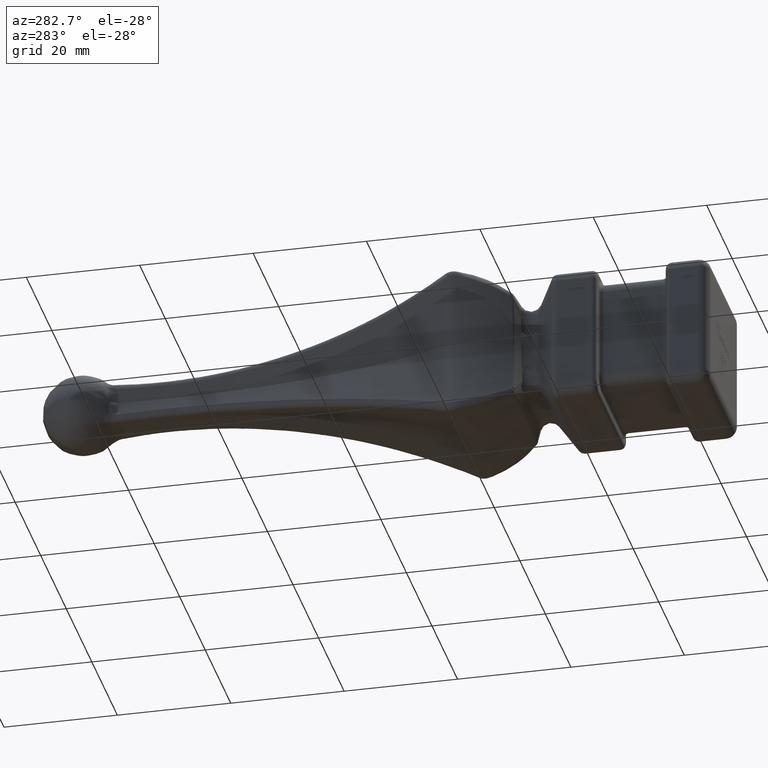
[diagram: clean part render]
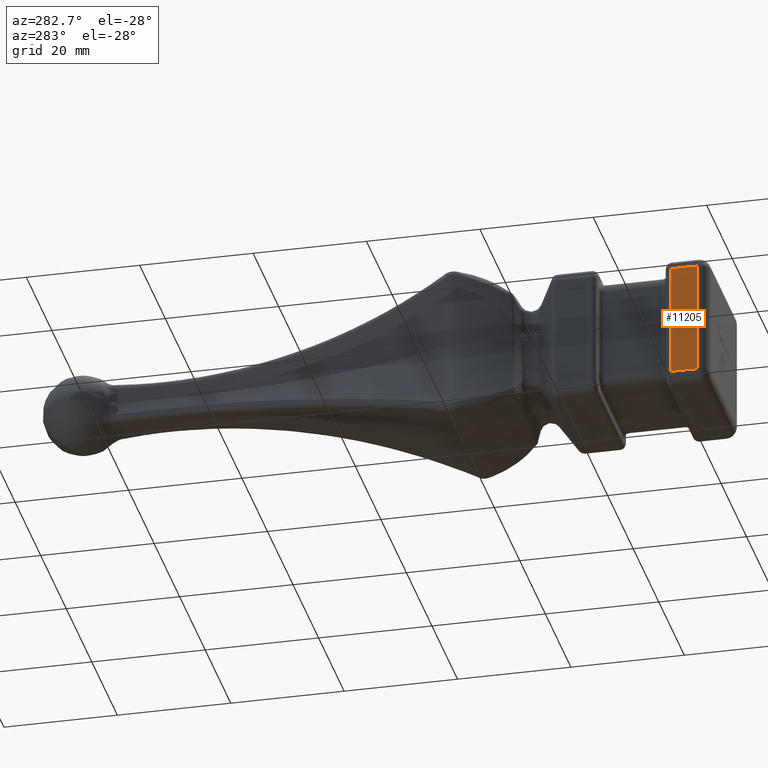
[diagram: same view with one face highlighted and labeled with its STEP entity id]
A machine part, auxiliary view. The second image highlights one B-rep face of the part: STEP entity #11205.
In plain terms, the highlighted planar face has unit normal (1, 0, -0).
Its self-contained STEP definition (entity closure, byte-faithful):
#404 = VECTOR ( 'NONE', #13866, 1000.000000000000000 ) ;
#1267 = LINE ( 'NONE', #1560, #20794 ) ;
#1487 = LINE ( 'NONE', #7339, #2620 ) ;
#1560 = CARTESIAN_POINT ( 'NONE',  ( -12.00000000000000000, -43.00000000000000000, 10.00000000000000533 ) ) ;
#2404 = CARTESIAN_POINT ( 'NONE',  ( -12.00000000000000000, -38.25000000000007105, 10.00000000000000355 ) ) ;
#2620 = VECTOR ( 'NONE', #19892, 1000.000000000000000 ) ;
#2730 = CARTESIAN_POINT ( 'NONE',  ( -12.00000000000000000, -43.00000000000000000, 10.00000000000000355 ) ) ;
#2754 = VERTEX_POINT ( 'NONE', #7335 ) ;
#3464 = DIRECTION ( 'NONE',  ( 1.734723475976806848E-16, -0.000000000000000000, 1.000000000000000000 ) ) ;
#3751 = LINE ( 'NONE', #15228, #21823 ) ;
#5520 = AXIS2_PLACEMENT_3D ( 'NONE', #20246, #14765, #11188 ) ;
#6124 = ORIENTED_EDGE ( 'NONE', *, *, #8797, .T. ) ;
#6187 = EDGE_CURVE ( 'NONE', #2754, #6941, #1267, .T. ) ;
#6941 = VERTEX_POINT ( 'NONE', #2730 ) ;
#7335 = CARTESIAN_POINT ( 'NONE',  ( -12.00000000000000355, -43.00000000000000000, -9.999999999999998224 ) ) ;
#7339 = CARTESIAN_POINT ( 'NONE',  ( -12.00000000000000355, -45.00000000000000000, -9.999999999999998224 ) ) ;
#8797 = EDGE_CURVE ( 'NONE', #6941, #12580, #21028, .T. ) ;
#9518 = PLANE ( 'NONE',  #5520 ) ;
#9991 = ORIENTED_EDGE ( 'NONE', *, *, #12388, .F. ) ;
#10288 = FACE_OUTER_BOUND ( 'NONE', #16767, .T. ) ;
#11188 = DIRECTION ( 'NONE',  ( -1.734723475976806848E-16, 0.000000000000000000, -1.000000000000000000 ) ) ;
#11205 = ADVANCED_FACE ( 'NONE', ( #10288 ), #9518, .F. ) ;
#12388 = EDGE_CURVE ( 'NONE', #2754, #14306, #1487, .T. ) ;
#12580 = VERTEX_POINT ( 'NONE', #2404 ) ;
#13866 = DIRECTION ( 'NONE',  ( -0.000000000000000000, 1.000000000000000000, -0.000000000000000000 ) ) ;
#14306 = VERTEX_POINT ( 'NONE', #21433 ) ;
#14765 = DIRECTION ( 'NONE',  ( 1.000000000000000000, 0.000000000000000000, -1.734723475976806848E-16 ) ) ;
#15228 = CARTESIAN_POINT ( 'NONE',  ( -12.00000000000000355, -38.25000000000007105, -9.999999999999998224 ) ) ;
#15296 = DIRECTION ( 'NONE',  ( -1.734723475976806848E-16, -2.094065392625398510E-43, -1.000000000000000000 ) ) ;
#15749 = CARTESIAN_POINT ( 'NONE',  ( -12.00000000000000000, -45.00000000000000000, 10.00000000000000355 ) ) ;
#16767 = EDGE_LOOP ( 'NONE', ( #6124, #23051, #9991, #18560 ) ) ;
#18560 = ORIENTED_EDGE ( 'NONE', *, *, #6187, .T. ) ;
#19892 = DIRECTION ( 'NONE',  ( -0.000000000000000000, 1.000000000000000000, -0.000000000000000000 ) ) ;
#20246 = CARTESIAN_POINT ( 'NONE',  ( -12.00000000000000000, -45.00000000000000000, 10.00000000000000355 ) ) ;
#20794 = VECTOR ( 'NONE', #3464, 1000.000000000000000 ) ;
#20881 = EDGE_CURVE ( 'NONE', #12580, #14306, #3751, .T. ) ;
#21028 = LINE ( 'NONE', #15749, #404 ) ;
#21433 = CARTESIAN_POINT ( 'NONE',  ( -12.00000000000000355, -38.25000000000007105, -9.999999999999998224 ) ) ;
#21823 = VECTOR ( 'NONE', #15296, 1000.000000000000000 ) ;
#23051 = ORIENTED_EDGE ( 'NONE', *, *, #20881, .T. ) ;